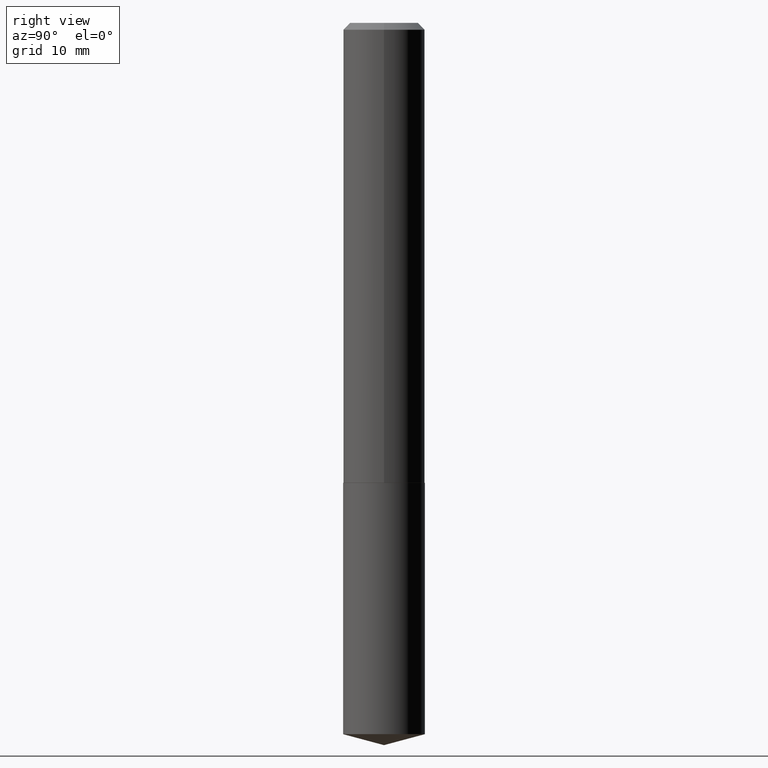
[diagram: clean part render]
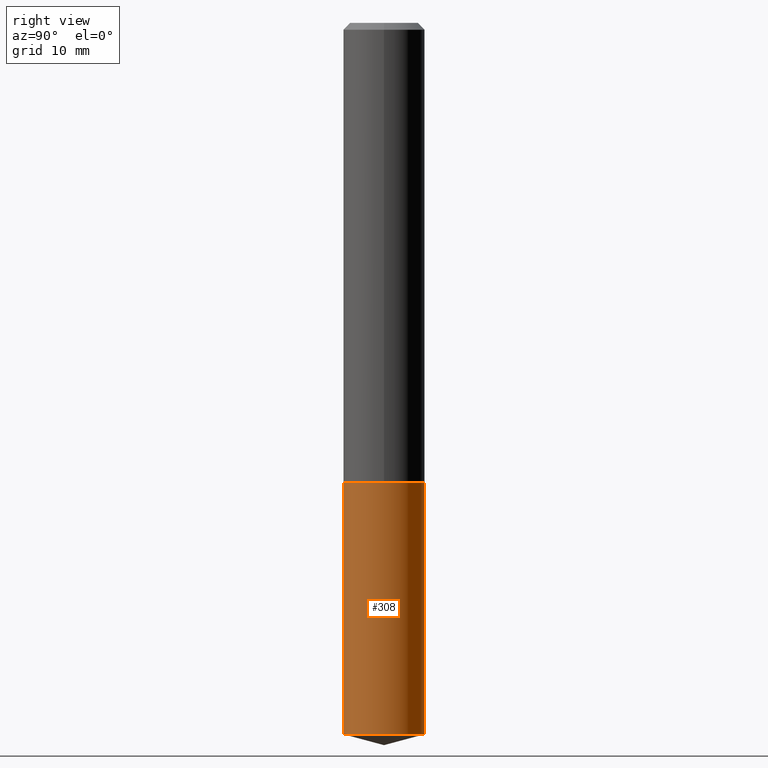
[diagram: same view with one face highlighted and labeled with its STEP entity id]
A machine part, right view. The second image highlights one B-rep face of the part: STEP entity #308.
In plain terms, the highlighted cylindrical surface (partial cylindrical patch) has radius 4.7498 mm, axis along (-0, 0, 1).
Its self-contained STEP definition (entity closure, byte-faithful):
#13 = EDGE_CURVE ( 'NONE', #320, #356, #267, .T. ) ;
#19 = EDGE_LOOP ( 'NONE', ( #29, #349, #233, #21 ) ) ;
#21 = ORIENTED_EDGE ( 'NONE', *, *, #88, .F. ) ;
#29 = ORIENTED_EDGE ( 'NONE', *, *, #357, .T. ) ;
#32 = CARTESIAN_POINT ( 'NONE',  ( 5.150890946467754134E-29, -7.354107144005318601E-15, -2.106300000000000505 ) ) ;
#39 = LINE ( 'NONE', #152, #256 ) ;
#44 = CARTESIAN_POINT ( 'NONE',  ( 1.328714915871467217E-15, 0.1869999999999926998, -2.106300000000000949 ) ) ;
#49 = AXIS2_PLACEMENT_3D ( 'NONE', #338, #69, #309 ) ;
#54 = CARTESIAN_POINT ( 'NONE',  ( -1.305814020727280331E-15, -0.1870000000000073548, -2.106300000000000061 ) ) ;
#58 = AXIS2_PLACEMENT_3D ( 'NONE', #307, #97, #222 ) ;
#59 = VERTEX_POINT ( 'NONE', #54 ) ;
#69 = DIRECTION ( 'NONE',  ( -2.445454567479548311E-29, 3.491501729479964866E-15, 1.000000000000000000 ) ) ;
#75 = CARTESIAN_POINT ( 'NONE',  ( -1.305814020727252523E-15, -0.1870000000000114071, -3.256993501015380321 ) ) ;
#88 = EDGE_CURVE ( 'NONE', #315, #59, #39, .T. ) ;
#97 = DIRECTION ( 'NONE',  ( -2.445454567479548311E-29, 3.491501729479964866E-15, 1.000000000000000000 ) ) ;
#98 = CARTESIAN_POINT ( 'NONE',  ( 1.328714915871467019E-15, 0.1869999999999886753, -3.256993501015381653 ) ) ;
#101 = FACE_OUTER_BOUND ( 'NONE', #19, .T. ) ;
#116 = CARTESIAN_POINT ( 'NONE',  ( 1.328714915871438620E-15, 0.1869999999999926721, -2.106300000000000949 ) ) ;
#146 = DIRECTION ( 'NONE',  ( -2.445454567479548311E-29, 3.491501729479964866E-15, 1.000000000000000000 ) ) ;
#152 = CARTESIAN_POINT ( 'NONE',  ( -1.305814020727280331E-15, -0.1870000000000073548, -2.106300000000000061 ) ) ;
#153 = CYLINDRICAL_SURFACE ( 'NONE', #49, 0.1869999999999999996 ) ;
#176 = CIRCLE ( 'NONE', #58, 0.1869999999999999996 ) ;
#187 = AXIS2_PLACEMENT_3D ( 'NONE', #32, #146, #266 ) ;
#212 = EDGE_CURVE ( 'NONE', #59, #356, #248, .T. ) ;
#222 = DIRECTION ( 'NONE',  ( -6.982962677686266711E-15, -1.000000000000000000, 2.921762560068730595E-15 ) ) ;
#233 = ORIENTED_EDGE ( 'NONE', *, *, #212, .F. ) ;
#237 = DIRECTION ( 'NONE',  ( -2.445454567479548591E-29, 3.491501729479964471E-15, 1.000000000000000000 ) ) ;
#248 = CIRCLE ( 'NONE', #187, 0.1869999999999999996 ) ;
#256 = VECTOR ( 'NONE', #300, 39.37007874015748143 ) ;
#262 = VECTOR ( 'NONE', #237, 39.37007874015748143 ) ;
#266 = DIRECTION ( 'NONE',  ( -6.982962677686266711E-15, -1.000000000000000000, 2.921762560068730595E-15 ) ) ;
#267 = LINE ( 'NONE', #116, #262 ) ;
#300 = DIRECTION ( 'NONE',  ( -2.445454567479548591E-29, 3.491501729479964471E-15, 1.000000000000000000 ) ) ;
#307 = CARTESIAN_POINT ( 'NONE',  ( 7.964859624294848919E-29, -1.137175549290187458E-14, -3.256993501015380765 ) ) ;
#308 = ADVANCED_FACE ( 'NONE', ( #101 ), #153, .T. ) ;
#309 = DIRECTION ( 'NONE',  ( -6.982962677686266711E-15, -1.000000000000000000, 2.921762560068730595E-15 ) ) ;
#315 = VERTEX_POINT ( 'NONE', #75 ) ;
#320 = VERTEX_POINT ( 'NONE', #98 ) ;
#338 = CARTESIAN_POINT ( 'NONE',  ( 5.150890946467754134E-29, -7.354107144005318601E-15, -2.106300000000000505 ) ) ;
#349 = ORIENTED_EDGE ( 'NONE', *, *, #13, .T. ) ;
#356 = VERTEX_POINT ( 'NONE', #44 ) ;
#357 = EDGE_CURVE ( 'NONE', #315, #320, #176, .T. ) ;